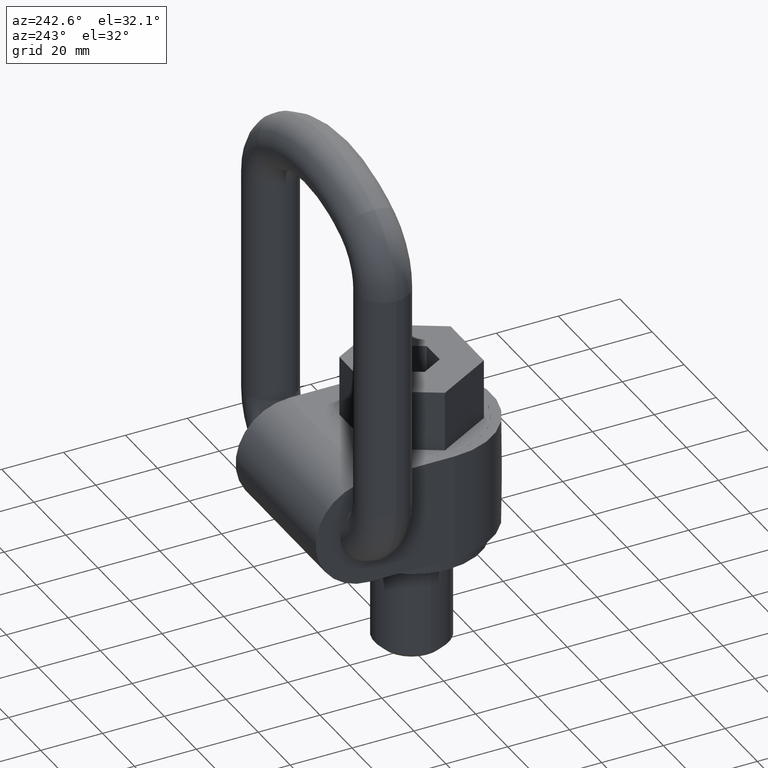
[diagram: clean part render]
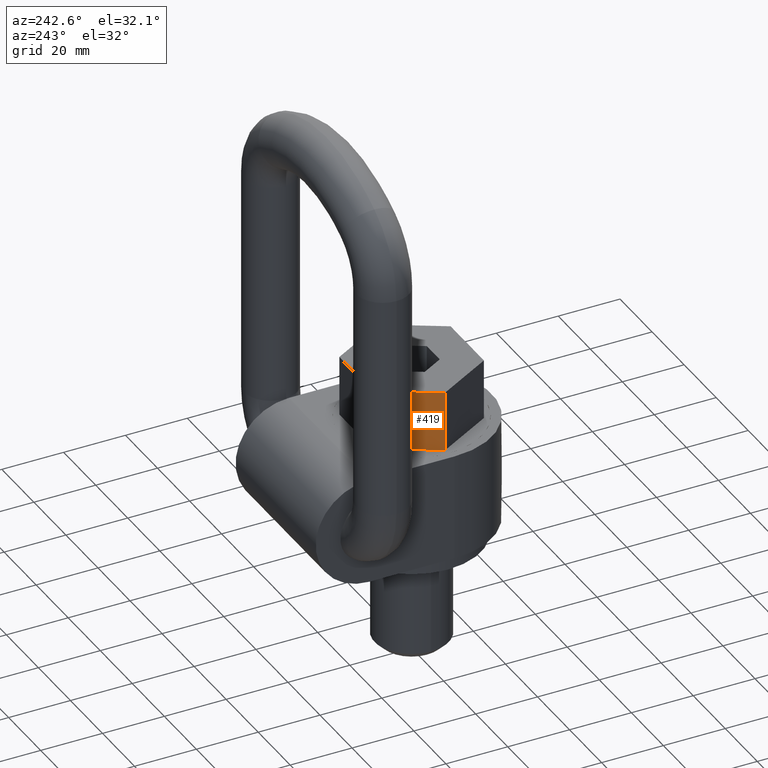
[diagram: same view with one face highlighted and labeled with its STEP entity id]
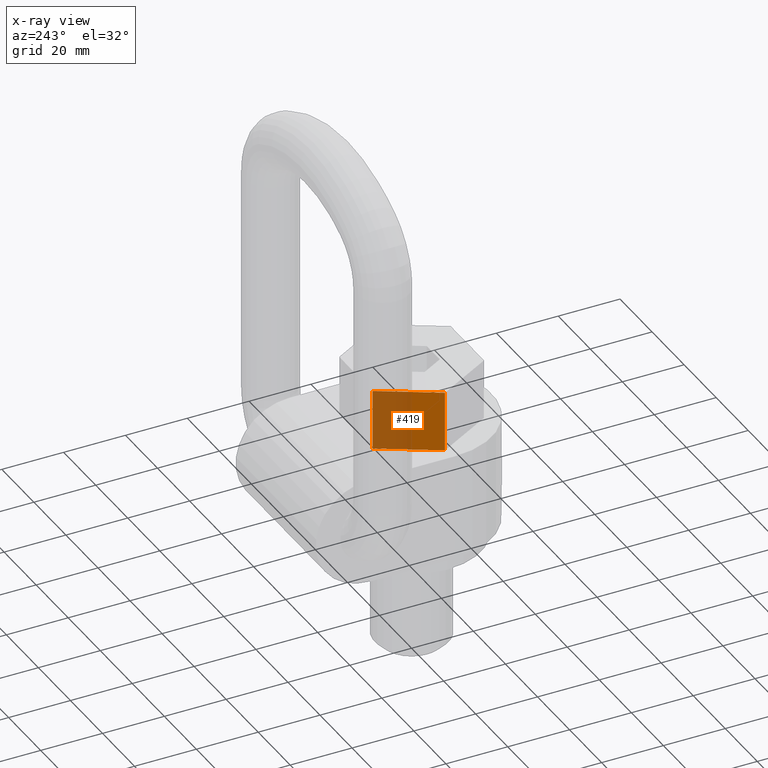
[diagram: x-ray of the same camera — body ghosted, the highlighted face saturated]
A machine part, auxiliary view. The second image highlights one B-rep face of the part: STEP entity #419.
The next image is the same camera in x-ray: the body ghosted, the highlighted face saturated — about 54% of this face is hidden behind the body in this view.
In plain terms, the highlighted planar face has unit normal (0.866, -0.5, 0).
Its self-contained STEP definition (entity closure, byte-faithful):
#252=FACE_OUTER_BOUND('',#650,.T.);
#357=PLANE('',#2465);
#419=ADVANCED_FACE('',(#252),#357,.F.);
#650=EDGE_LOOP('',(#1244,#1245,#1246,#1247));
#800=LINE('',#3824,#926);
#807=LINE('',#3838,#933);
#814=LINE('',#3852,#940);
#816=LINE('',#3856,#942);
#926=VECTOR('',#2649,1.);
#933=VECTOR('',#2658,1.);
#940=VECTOR('',#2673,1.);
#942=VECTOR('',#2677,1.);
#1244=ORIENTED_EDGE('',*,*,#2023,.T.);
#1245=ORIENTED_EDGE('',*,*,#2030,.F.);
#1246=ORIENTED_EDGE('',*,*,#2039,.F.);
#1247=ORIENTED_EDGE('',*,*,#2037,.T.);
#1808=VERTEX_POINT('',#3822);
#1810=VERTEX_POINT('',#3825);
#1815=VERTEX_POINT('',#3837);
#1819=VERTEX_POINT('',#3853);
#2023=EDGE_CURVE('',#1810,#1808,#800,.T.);
#2030=EDGE_CURVE('',#1815,#1808,#807,.T.);
#2037=EDGE_CURVE('',#1819,#1810,#814,.T.);
#2039=EDGE_CURVE('',#1819,#1815,#816,.T.);
#2465=AXIS2_PLACEMENT_3D('',#3857,#2678,#2679);
#2649=DIRECTION('',(-0.5,-0.866025403784438,0.));
#2658=DIRECTION('',(0.,0.,-1.));
#2673=DIRECTION('',(0.,0.,-1.));
#2677=DIRECTION('',(-0.5,-0.866025403784438,0.));
#2678=DIRECTION('',(0.866025403784439,-0.5,0.));
#2679=DIRECTION('',(0.5,0.866025403784439,0.));
#3822=CARTESIAN_POINT('',(-20.7846096908265,-1.4210854715202E-14,34.5));
#3824=CARTESIAN_POINT('',(-10.3923048454133,18.,34.5));
#3825=CARTESIAN_POINT('',(-10.3923048454133,18.,34.5));
#3837=CARTESIAN_POINT('',(-20.7846096908265,-1.4210854715202E-14,54.));
#3838=CARTESIAN_POINT('',(-20.7846096908265,-1.4210854715202E-14,54.));
#3852=CARTESIAN_POINT('',(-10.3923048454133,18.,54.));
#3853=CARTESIAN_POINT('',(-10.3923048454133,18.,54.));
#3856=CARTESIAN_POINT('',(-10.3923048454133,18.,54.));
#3857=CARTESIAN_POINT('',(-10.3923048454133,18.,54.));